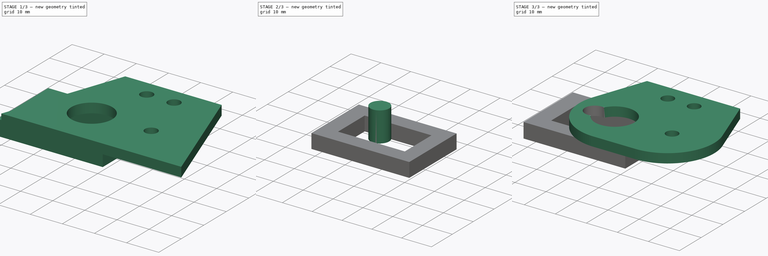
[diagram: build sequence overview — one tinted view per stage of 3, left to right]
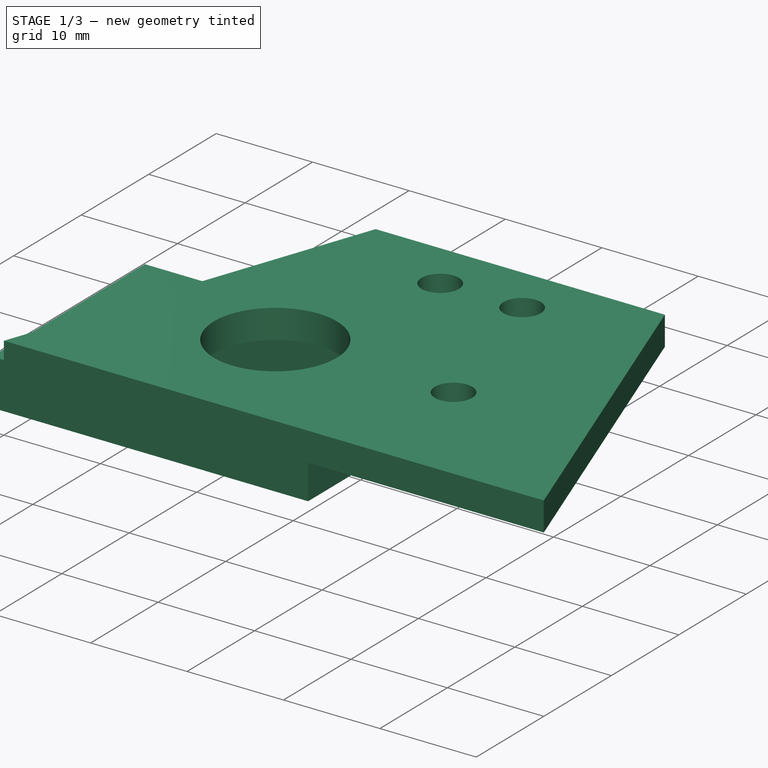
[diagram: stage 1 of 3 — iso view after this stage's code; geometry added in this stage tinted green]
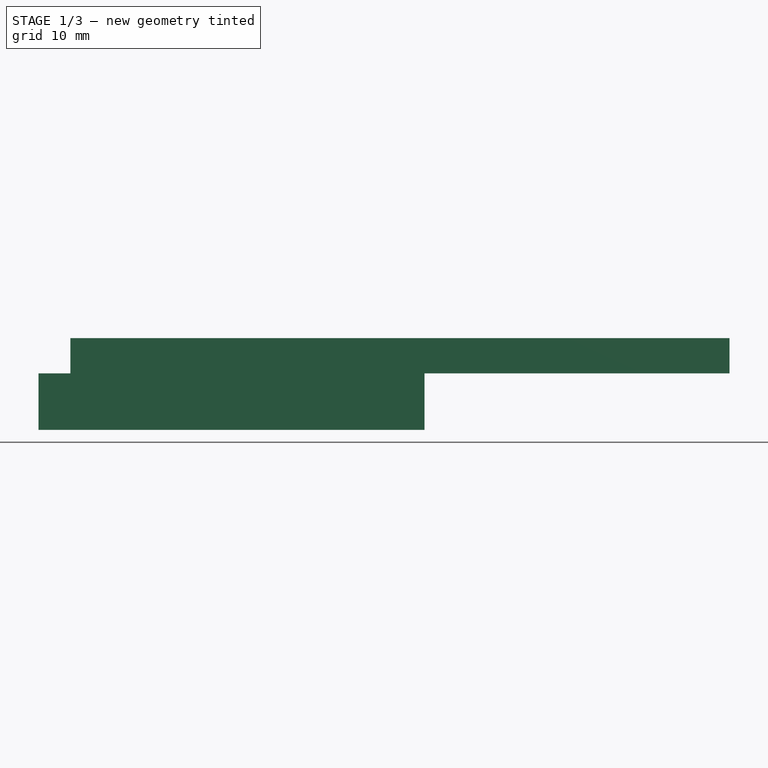
[diagram: stage 1 of 3 — front view after this stage's code; geometry added in this stage tinted green]
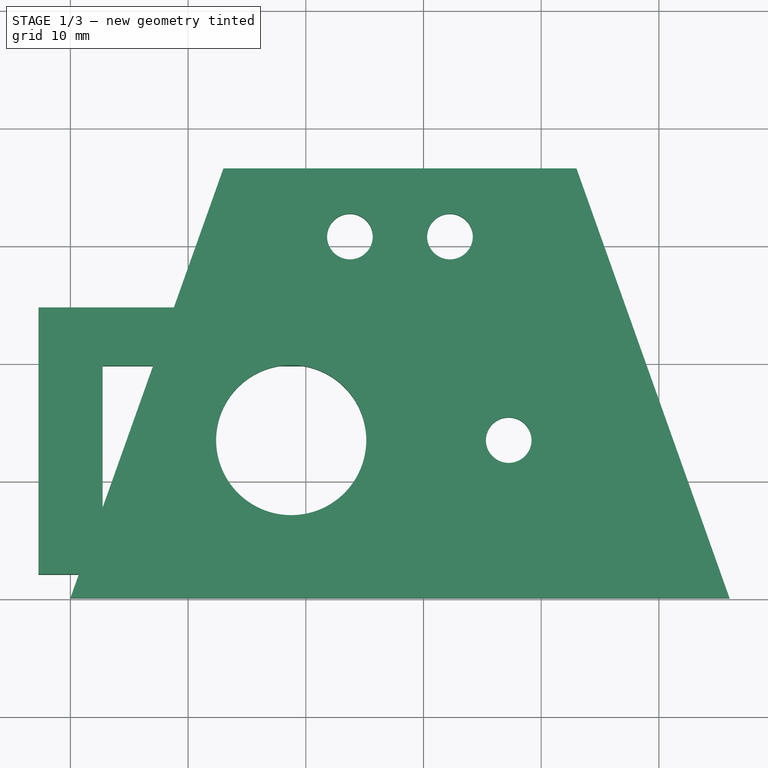
[diagram: stage 1 of 3 — top view after this stage's code; geometry added in this stage tinted green]
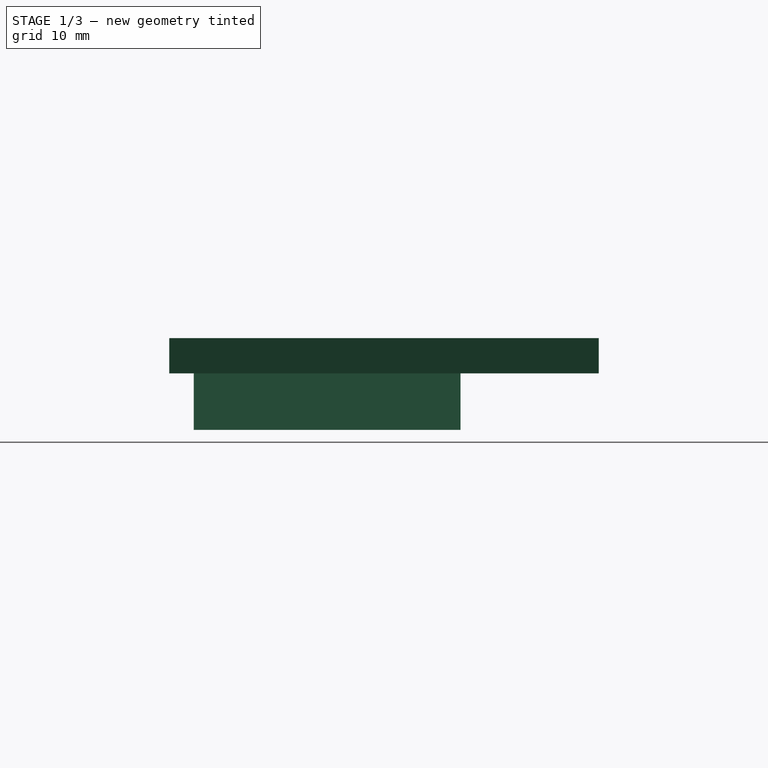
[diagram: stage 1 of 3 — right view after this stage's code; geometry added in this stage tinted green]
FCSTD DOCUMENT  (FreeCAD 0.20R29410 (Git))
Label: Base2
License: All rights reserved
LicenseURL: http://en.wikipedia.org/wiki/All_rights_reserved
objects: Sketcher::SketchObject×3, Part::Extrusion×3, Part::Fillet×1, Part::Cut×1, Part::MultiFuse×1
note: 9 computed .brp shape members not serialized (recipe doc carries the construction recipe); baked Part::Feature solids carry a one-line shape summary decoded from their .brp

FEATURE [Sketcher::SketchObject] Sketch003  label="Trapezoid 30x56x36mm"
  FullyConstrained = true
  MapMode = 2
  sketch-geometry (8):
    g0: LineSegment StartX=0 StartY=0 StartZ=0 EndX=13 EndY=36.5 EndZ=0
    g1: LineSegment StartX=13 StartY=36.5 StartZ=0 EndX=43 EndY=36.5 EndZ=0
    g2: LineSegment StartX=43 StartY=36.5 StartZ=0 EndX=56 EndY=0 EndZ=0
    g3: LineSegment StartX=56 StartY=0 StartZ=0 EndX=0 EndY=0 EndZ=0
    g4: Circle CenterX=23.75 CenterY=30.7145 CenterZ=0 NormalX=0 NormalY=0 NormalZ=1 AngleXU=0 Radius=1.94
    g5: Circle CenterX=32.25 CenterY=30.7145 CenterZ=0 NormalX=0 NormalY=0 NormalZ=1 AngleXU=0 Radius=1.94
    g6: Circle CenterX=37.24 CenterY=13.42 CenterZ=0 NormalX=0 NormalY=0 NormalZ=1 AngleXU=0 Radius=1.94
    g7: Circle CenterX=18.76 CenterY=13.42 CenterZ=0 NormalX=0 NormalY=0 NormalZ=1 AngleXU=0 Radius=6.38
  constraints (23):
    c: Coincident(g0,g-1)
    c: Coincident(g1,g0)
    c: Horizontal(g1)
    c: PointOnObject(g2,g-1)
    c: Coincident(g3,g0)
    c: DistanceX(g1,g1) = 30
    c: Coincident(g2,g1)
    c: Coincident(g3,g2)
    c: DistanceY(g0,g0) = 36.5
    c: Equal(g0,g2)
    c: DistanceX(g3,g3) = 56
    c: Equal(g6,g4)
    c: Equal(g4,g5)
    c: Horizontal(g4,g5)
    c: Distance(g5,g6) = 18
    c: DistanceX(g4,g5) = 8.5
    c: Radius(g4) = 1.94
    c: DistanceX(g0,g4) = 10.75
    c: Horizontal(g7,g6)
    c: Distance(g4,g7) = 18
    c: Radius(g7) = 6.38
    c: DistanceX(g7,g6) = 18.48
    c: DistanceY(g0,g7) = 13.42
FEATURE [Part::Extrusion] Extrude  label="Extrude 3mm"
  Base = -> Sketch003
  Dir = (0,0,1)
  DirMode = 2
  FaceMakerClass = Part::FaceMakerBullseye
  LengthFwd = 3
  LengthRev = 0
  Solid = true
  Symmetric = false
FEATURE [Sketcher::SketchObject] Sketch004
  FullyConstrained = false
  sketch-geometry (9):
    g0: LineSegment StartX=25.14 StartY=19.8 StartZ=0 EndX=25.14 EndY=7.04 EndZ=0
    g1: LineSegment StartX=25.14 StartY=7.04 StartZ=0 EndX=2.74 EndY=7.04 EndZ=0
    g2: GeomPoint X=0 Y=13.42 Z=0
    g3: LineSegment StartX=-2.71 StartY=24.75 StartZ=0 EndX=30.09 EndY=24.75 EndZ=0
    g4: LineSegment StartX=30.09 StartY=24.75 StartZ=0 EndX=30.09 EndY=2.09 EndZ=0
    g5: LineSegment StartX=30.09 StartY=2.09 StartZ=0 EndX=-2.71 EndY=2.09 EndZ=0
    g6: LineSegment StartX=-2.71 StartY=2.09 StartZ=0 EndX=-2.71 EndY=24.75 EndZ=0
    g7: LineSegment StartX=2.74 StartY=19.8 StartZ=0 EndX=2.74 EndY=7.04 EndZ=0
    g8: LineSegment StartX=2.74 StartY=19.8 StartZ=0 EndX=25.14 EndY=19.8 EndZ=0
  constraints (24):
    c: Coincident(g0,g1)
    c: Horizontal(g1)
    c: Vertical(g0)
    c: DistanceY(g2) = 13.42
    c: DistanceY(g1,g2) = 6.38
    c: Coincident(g3,g4)
    c: Coincident(g4,g5)
    c: Coincident(g5,g6)
    c: Coincident(g6,g3)
    c: Horizontal(g3)
    c: Horizontal(g5)
    c: Vertical(g4)
    c: Vertical(g6)
    c: DistanceX(g0,g3) = 4.95
    c: DistanceY(g0,g3) = 4.95
    c: DistanceY(g5,g1) = 4.95
    c: Vertical(g7)
    c: DistanceX(g7,g0) = 22.4
    c: Coincident(g1,g7)
    c: Coincident(g8,g7)
    c: Coincident(g8,g0)
    c: Horizontal(g8)
    c: DistanceX(g3,g7) = 5.45
    c: DistanceX(g-1,g0) = 25.14
FEATURE [Part::Extrusion] Extrude002
  Base = -> Sketch004
  Dir = (0,0,1)
  DirMode = 2
  FaceMakerClass = Part::FaceMakerBullseye
  LengthFwd = 4.8
  LengthRev = 0
  Reversed = true
  Solid = true
  Symmetric = false
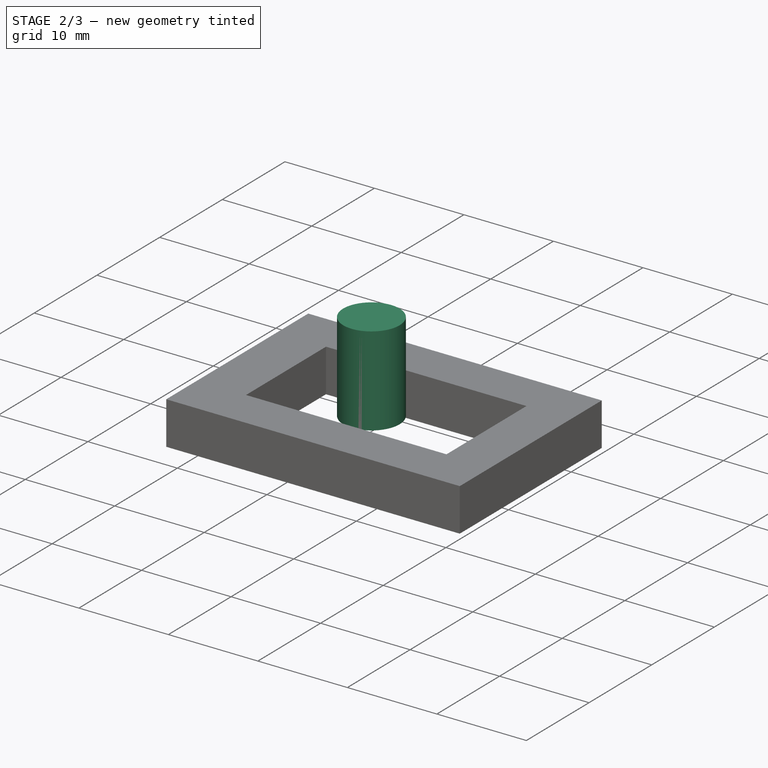
[diagram: stage 2 of 3 — iso view after this stage's code; geometry added in this stage tinted green]
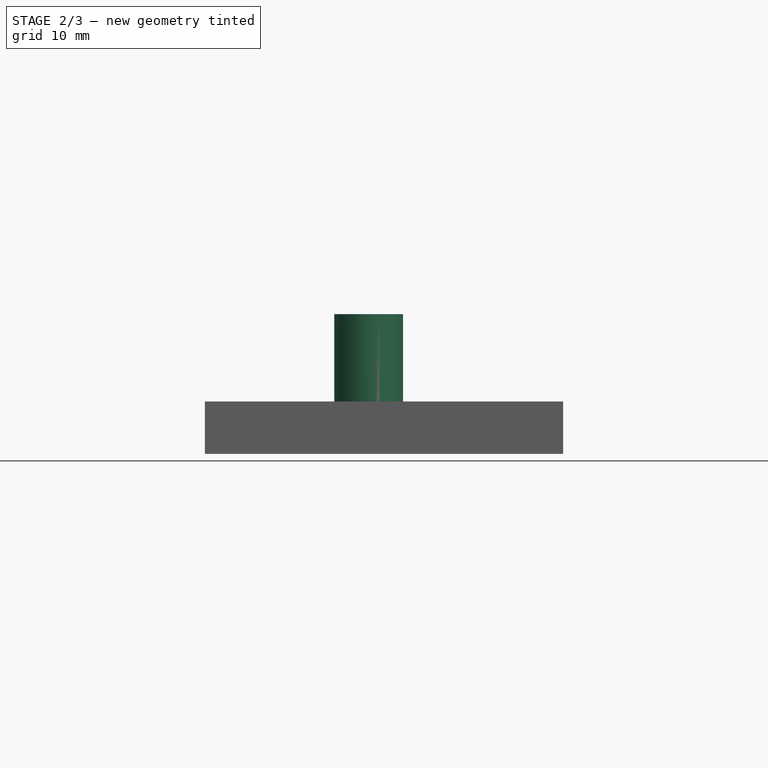
[diagram: stage 2 of 3 — front view after this stage's code; geometry added in this stage tinted green]
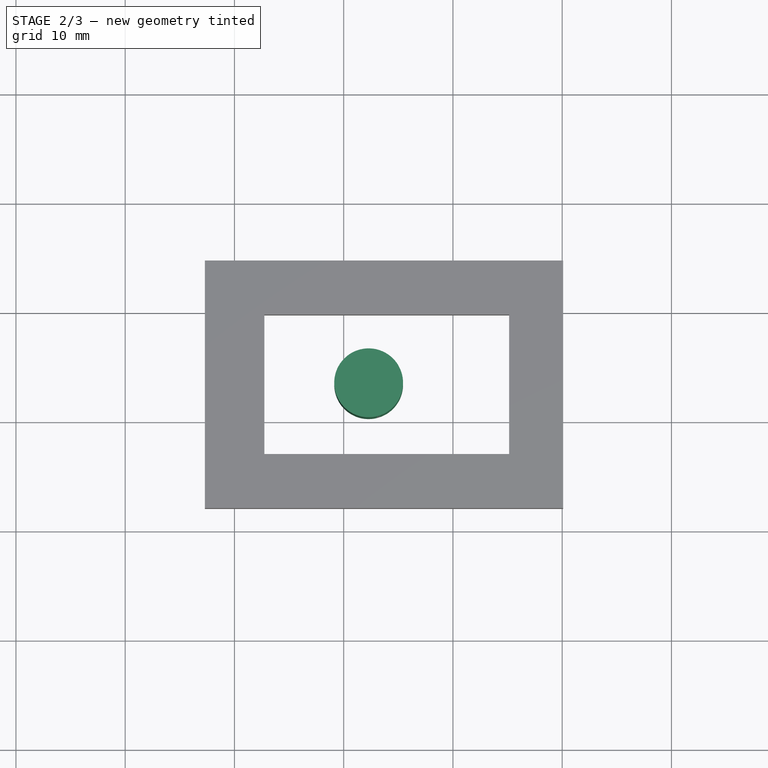
[diagram: stage 2 of 3 — top view after this stage's code; geometry added in this stage tinted green]
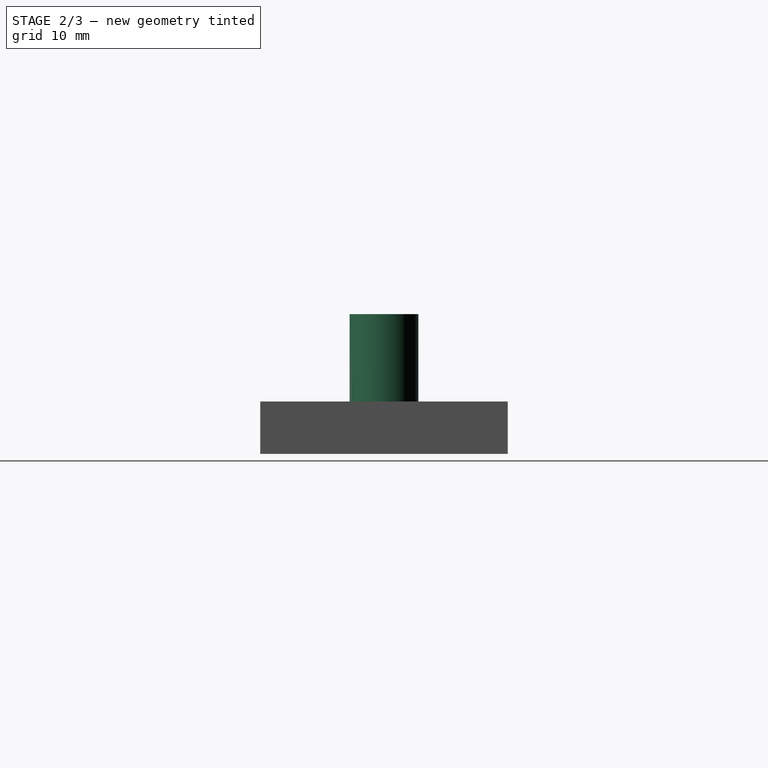
[diagram: stage 2 of 3 — right view after this stage's code; geometry added in this stage tinted green]
FEATURE [Part::Fillet] Fillet  label="Fillet 15mm"
  Base = -> Extrude
  Edges = 2 edges r=15: [Edge1,Edge8]
FEATURE [Sketcher::SketchObject] Sketch
  FullyConstrained = false
  MapMode = 5
  Placement = pos=(0,0,3) rot=(0,0,1;0rad)
  Support = -> [Fillet]
  sketch-geometry (1):
    g0: Circle CenterX=12.2839 CenterY=13.42 CenterZ=0 NormalX=0 NormalY=0 NormalZ=1 AngleXU=0 Radius=3.15
  constraints (2):
    c: DistanceY(g-1,g0) = 13.42
    c: Radius(g0) = 3.15
FEATURE [Part::Extrusion] Extrude001
  Base = -> Sketch
  Dir = (0,0,1)
  DirMode = 2
  FaceMakerClass = Part::FaceMakerBullseye
  LengthFwd = 10
  LengthRev = 0
  Reversed = true
  Solid = true
  Symmetric = true
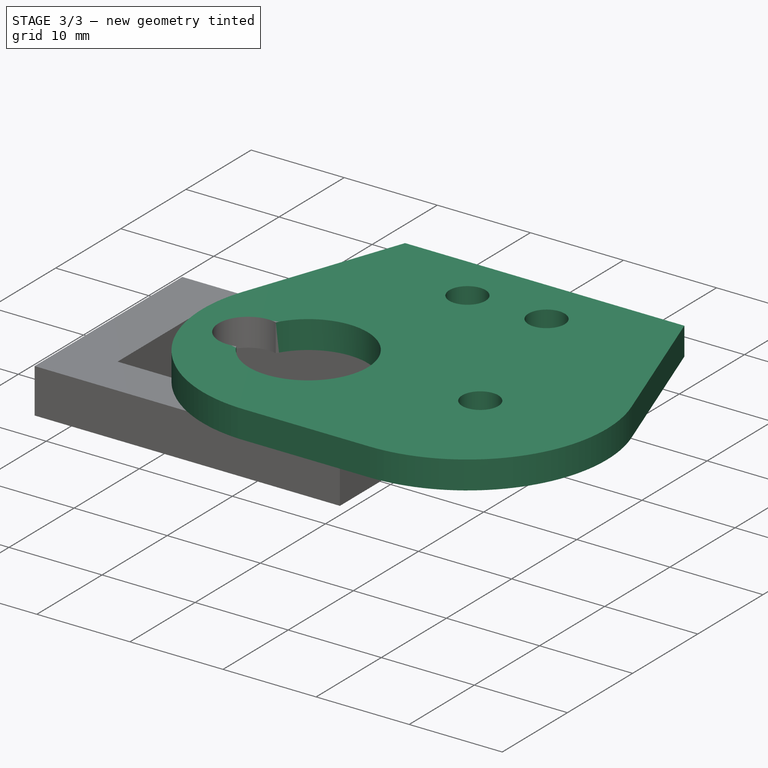
[diagram: stage 3 of 3 — iso view after this stage's code; geometry added in this stage tinted green]
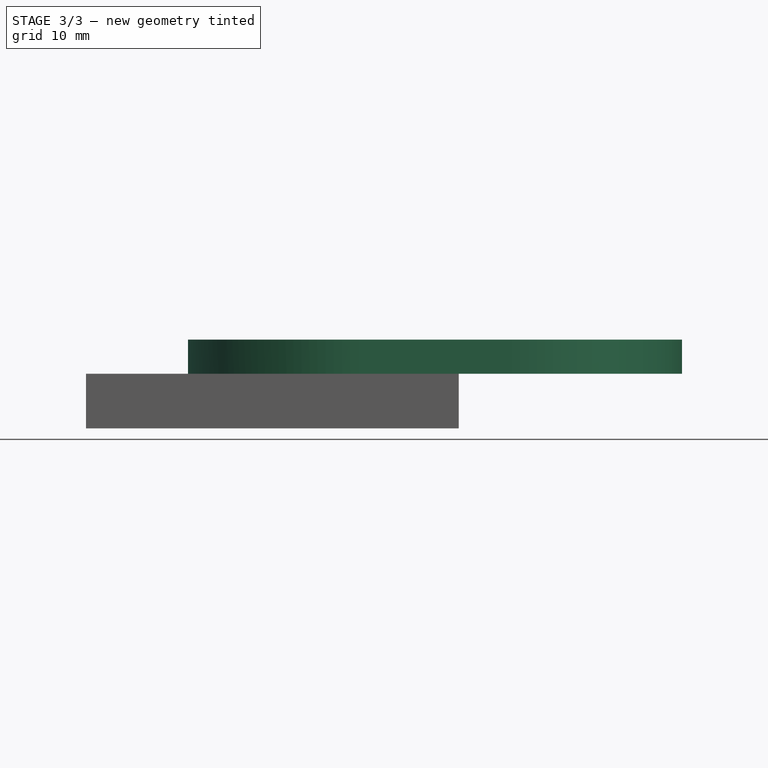
[diagram: stage 3 of 3 — front view after this stage's code; geometry added in this stage tinted green]
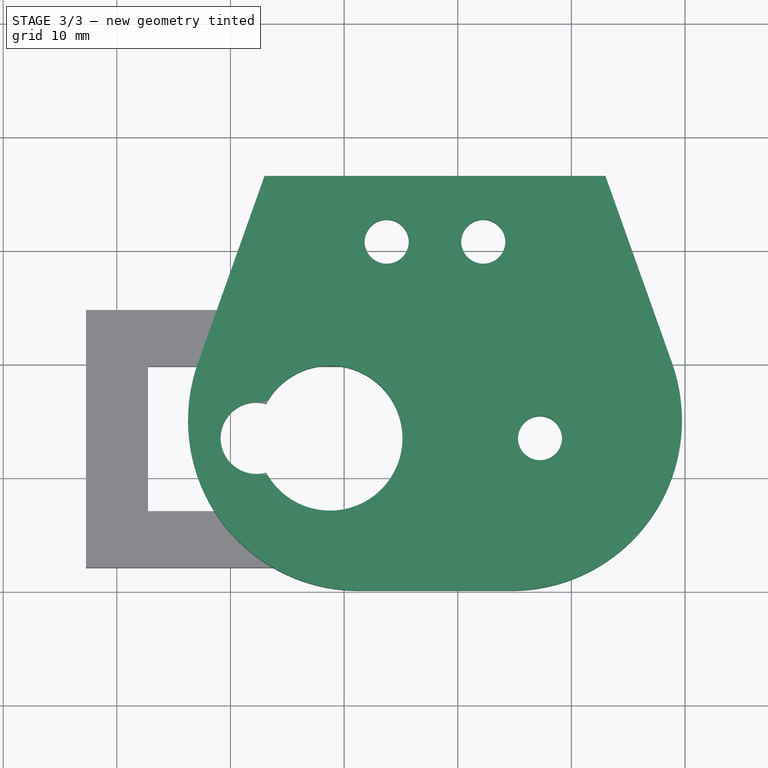
[diagram: stage 3 of 3 — top view after this stage's code; geometry added in this stage tinted green]
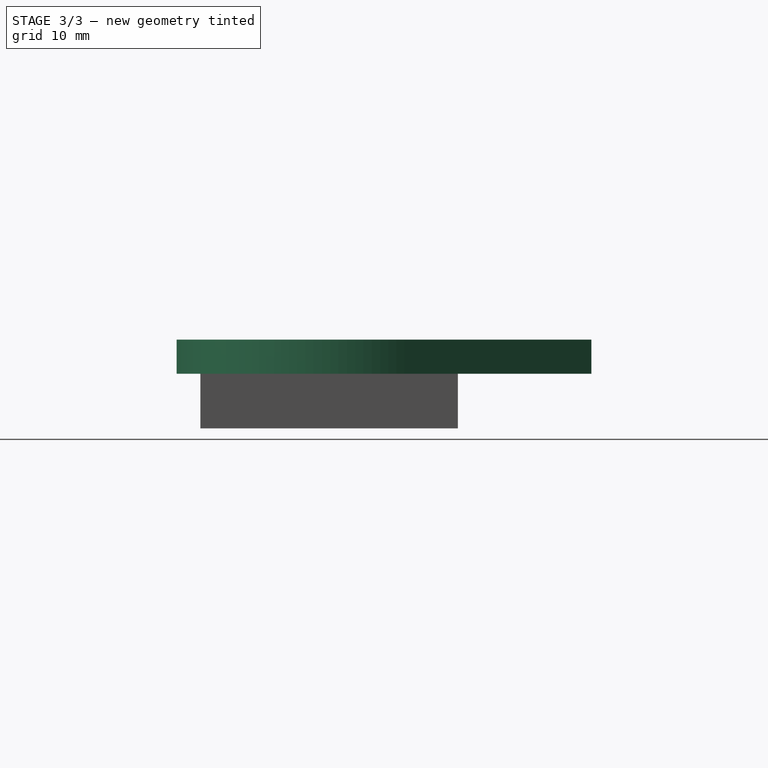
[diagram: stage 3 of 3 — right view after this stage's code; geometry added in this stage tinted green]
FEATURE [Part::Cut] Cut
  Base = -> Fillet
  Refine = true
  Tool = -> Extrude001
FEATURE [Part::MultiFuse] Fusion
  Refine = true
  Shapes = -> [Cut,Extrude002]
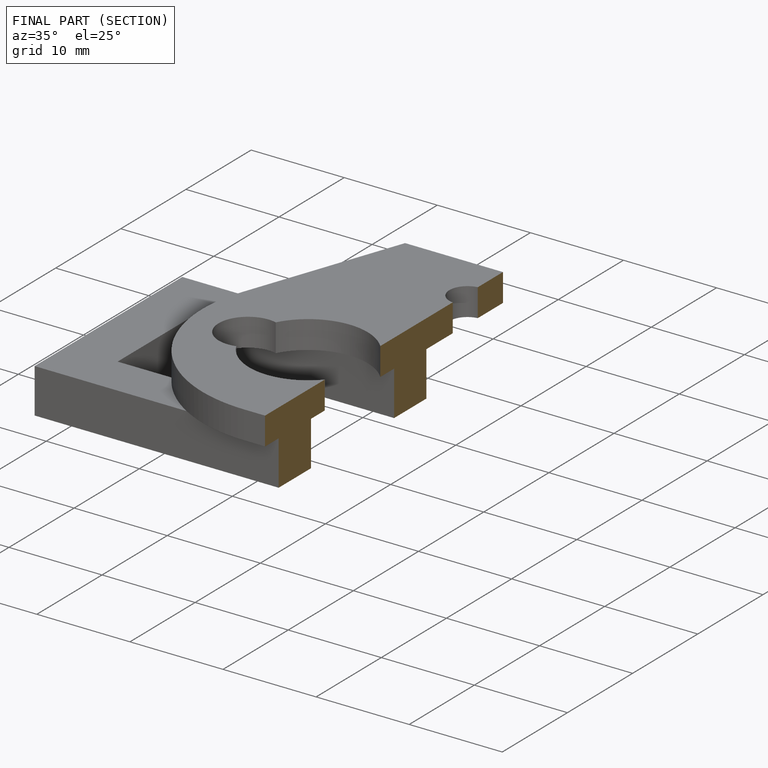
[diagram: finished part — half-section view (interior)]
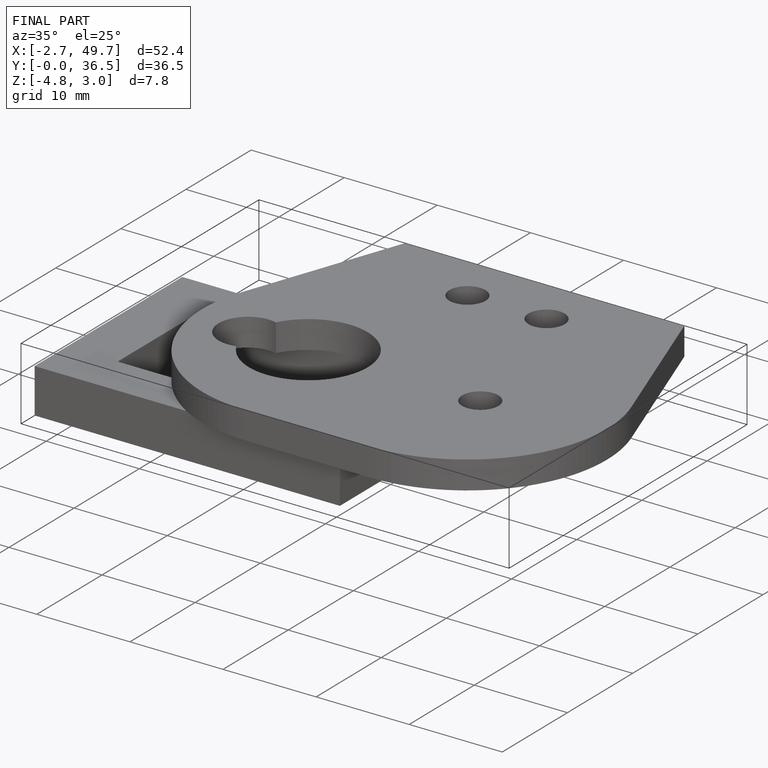
[diagram: finished part — iso view with bounding-box wireframe]
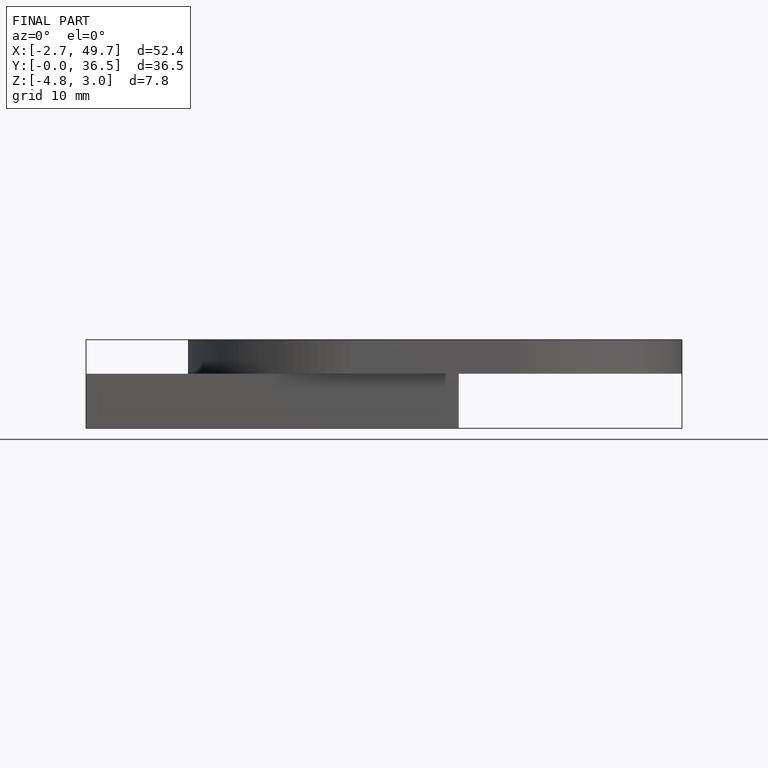
[diagram: finished part — front view with bounding-box wireframe]
